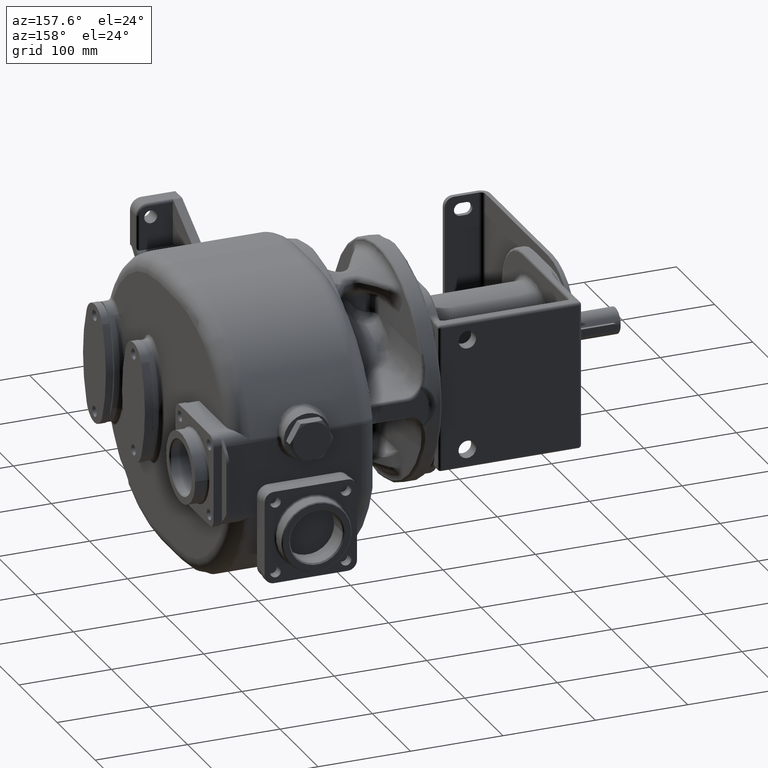
[diagram: clean part render]
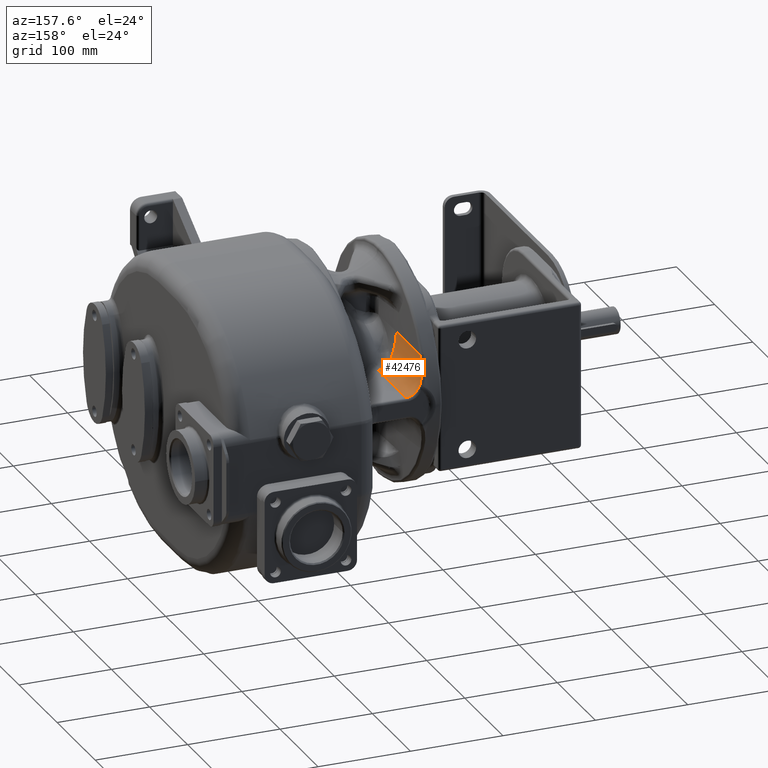
[diagram: same view with one face highlighted and labeled with its STEP entity id]
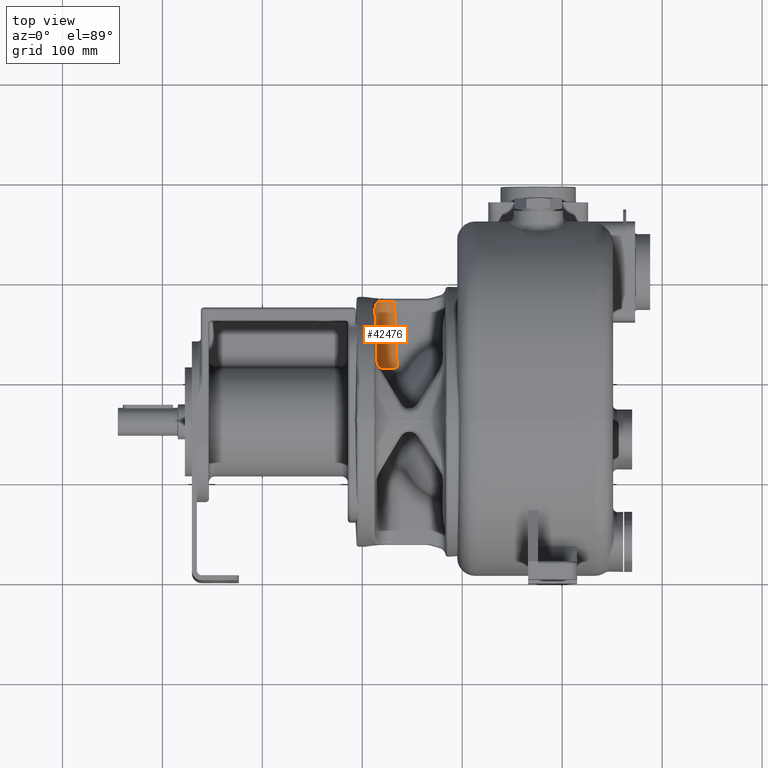
[diagram: same view with one face highlighted and labeled with its STEP entity id]
A machine part, auxiliary view. The second image highlights one B-rep face of the part: STEP entity #42476.
A second angle (top view) of the same face is appended — the face is thin or edge-on in the first view.
In plain terms, the highlighted face is a freeform B-spline surface patch.
Its self-contained STEP definition (entity closure, byte-faithful):
#7581=CARTESIAN_POINT('',(-1.815004487016E2,2.802087586596E2,1.938806853453E1));
#7582=CARTESIAN_POINT('',(-1.813758234579E2,2.802093198574E2,1.917876427243E1));
#7583=CARTESIAN_POINT('',(-1.811254118150E2,2.802103880616E2,1.877238443377E1));
#7584=CARTESIAN_POINT('',(-1.807475351435E2,2.802118111789E2,1.819885994979E1));
#7585=CARTESIAN_POINT('',(-1.803677355879E2,2.802130445616E2,1.765936036321E1));
#7586=CARTESIAN_POINT('',(-1.799863597802E2,2.802140788385E2,1.715207963159E1));
#7587=CARTESIAN_POINT('',(-1.796035142827E2,2.802149045889E2,1.667506037468E1));
#7588=CARTESIAN_POINT('',(-1.792191368028E2,2.802155154500E2,1.622635929515E1));
#7589=CARTESIAN_POINT('',(-1.788330071277E2,2.802159045927E2,1.580408150634E1));
#7590=CARTESIAN_POINT('',(-1.784446620134E2,2.802160651490E2,1.540632206977E1));
#7591=CARTESIAN_POINT('',(-1.780536567282E2,2.802159927249E2,1.503146310839E1));
#7592=CARTESIAN_POINT('',(-1.776599264368E2,2.802156801403E2,1.467843183220E1));
#7593=CARTESIAN_POINT('',(-1.772632157029E2,2.802151261648E2,1.434609879092E1));
#7594=CARTESIAN_POINT('',(-1.768631401999E2,2.802143249813E2,1.403337738278E1));
#7595=CARTESIAN_POINT('',(-1.764592960385E2,2.802132779954E2,1.373931474762E1));
#7596=CARTESIAN_POINT('',(-1.760513290655E2,2.802119814182E2,1.346312391480E1));
#7597=CARTESIAN_POINT('',(-1.756387715638E2,2.802104391675E2,1.320405761815E1));
#7598=CARTESIAN_POINT('',(-1.752210688441E2,2.802086501198E2,1.296144265774E1));
#7599=CARTESIAN_POINT('',(-1.747976493581E2,2.802066186774E2,1.273472211071E1));
#7600=CARTESIAN_POINT('',(-1.743679398186E2,2.802043488725E2,1.252345393090E1));
#7601=CARTESIAN_POINT('',(-1.739313088677E2,2.802018443103E2,1.232727795963E1));
#7602=CARTESIAN_POINT('',(-1.734871078628E2,2.801991147730E2,1.214593452123E1));
#7603=CARTESIAN_POINT('',(-1.730346288329E2,2.801961634087E2,1.197924586871E1));
#7604=CARTESIAN_POINT('',(-1.725731424577E2,2.801930041769E2,1.182713099186E1));
#7605=CARTESIAN_POINT('',(-1.721019165057E2,2.801896421261E2,1.168961093179E1));
#7606=CARTESIAN_POINT('',(-1.716203086904E2,2.801860946061E2,1.156681787548E1));
#7607=CARTESIAN_POINT('',(-1.711272588606E2,2.801823676018E2,1.145887474046E1));
#7608=CARTESIAN_POINT('',(-1.706215995599E2,2.801784756672E2,1.136602133703E1));
#7609=CARTESIAN_POINT('',(-1.701022431684E2,2.801744296439E2,1.128864627862E1));
#7610=CARTESIAN_POINT('',(-1.695681333230E2,2.801702431898E2,1.122726224460E1));
#7611=CARTESIAN_POINT('',(-1.690183172455E2,2.801659347281E2,1.118249948872E1));
#7612=CARTESIAN_POINT('',(-1.684519380225E2,2.801615178096E2,1.115508780255E1));
#7613=CARTESIAN_POINT('',(-1.680629920527E2,2.801585184324E2,1.114891607235E1));
#7614=CARTESIAN_POINT('',(-1.678655197267E2,2.801570078687E2,1.114899490412E1));
#7616=CARTESIAN_POINT('',(-1.700177710151E2,2.129948751001E2,1.550553421383E1));
#7617=CARTESIAN_POINT('',(-1.698700551071E2,2.130370000663E2,1.544979734173E1));
#7618=CARTESIAN_POINT('',(-1.695717845526E2,2.131219206863E2,1.534320619561E1));
#7619=CARTESIAN_POINT('',(-1.691160869185E2,2.132510866742E2,1.519824429434E1));
#7620=CARTESIAN_POINT('',(-1.686506325535E2,2.133822372859E2,1.506800685973E1));
#7621=CARTESIAN_POINT('',(-1.681743832491E2,2.135153654045E2,1.495262089919E1));
#7622=CARTESIAN_POINT('',(-1.676867773183E2,2.136528640517E2,1.485227052059E1));
#7623=CARTESIAN_POINT('',(-1.671865898962E2,2.137946739694E2,1.476725981711E1));
#7624=CARTESIAN_POINT('',(-1.666726796370E2,2.139407730196E2,1.469805456479E1));
#7625=CARTESIAN_POINT('',(-1.661442960130E2,2.140923185100E2,1.464520594418E1));
#7626=CARTESIAN_POINT('',(-1.656004580199E2,2.142498070475E2,1.460936599733E1));
#7627=CARTESIAN_POINT('',(-1.652269947263E2,2.143587793557E2,1.459733485928E1));
#7628=CARTESIAN_POINT('',(-1.650374075172E2,2.144142901760E2,1.459442474243E1));
#7630=CARTESIAN_POINT('',(-1.700177710151E2,2.129948751001E2,1.550553421383E1));
#7631=CARTESIAN_POINT('',(-1.701629985630E2,2.129920435323E2,1.555778128648E1));
#7632=CARTESIAN_POINT('',(-1.704541627311E2,2.129869515762E2,1.566807123645E1));
#7633=CARTESIAN_POINT('',(-1.708963395078E2,2.129817753573E2,1.585353992273E1));
#7634=CARTESIAN_POINT('',(-1.713308645302E2,2.129770973667E2,1.605436848925E1));
#7635=CARTESIAN_POINT('',(-1.717611802598E2,2.129734610968E2,1.627208280385E1));
#7636=CARTESIAN_POINT('',(-1.721862946671E2,2.129707385684E2,1.650654812044E1));
#7637=CARTESIAN_POINT('',(-1.726068016226E2,2.129690467686E2,1.675832663965E1));
#7638=CARTESIAN_POINT('',(-1.730229129854E2,2.129684719537E2,1.702790404894E1));
#7639=CARTESIAN_POINT('',(-1.734352917186E2,2.129690199764E2,1.731615169184E1));
#7640=CARTESIAN_POINT('',(-1.738445082245E2,2.129706876600E2,1.762405776449E1));
#7641=CARTESIAN_POINT('',(-1.742509903384E2,2.129735304754E2,1.795266128447E1));
#7642=CARTESIAN_POINT('',(-1.746550039026E2,2.129776197022E2,1.830301193419E1));
#7643=CARTESIAN_POINT('',(-1.750569999093E2,2.129830026243E2,1.867648170347E1));
#7644=CARTESIAN_POINT('',(-1.754572893246E2,2.129897253595E2,1.907451032448E1));
#7645=CARTESIAN_POINT('',(-1.758562720670E2,2.129978658688E2,1.949883315527E1));
#7646=CARTESIAN_POINT('',(-1.762541630850E2,2.130075140276E2,1.995122703772E1));
#7647=CARTESIAN_POINT('',(-1.766510614184E2,2.130187660424E2,2.043356481460E1));
#7648=CARTESIAN_POINT('',(-1.770468459050E2,2.130317220964E2,2.094764704583E1));
#7649=CARTESIAN_POINT('',(-1.774418790186E2,2.130465102034E2,2.149616010568E1));
#7650=CARTESIAN_POINT('',(-1.778363426046E2,2.130632727668E2,2.208195094319E1));
#7651=CARTESIAN_POINT('',(-1.782301269839E2,2.130821601060E2,2.270782098983E1));
#7652=CARTESIAN_POINT('',(-1.786228141500E2,2.131033231593E2,2.337637958055E1));
#7653=CARTESIAN_POINT('',(-1.790145642836E2,2.131269654624E2,2.409161825879E1));
#7654=CARTESIAN_POINT('',(-1.794052748845E2,2.131533094080E2,2.485770977711E1));
#7655=CARTESIAN_POINT('',(-1.797944520058E2,2.131825823237E2,2.567865662256E1));
#7656=CARTESIAN_POINT('',(-1.801815201423E2,2.132150331404E2,2.655881821860E1));
#7657=CARTESIAN_POINT('',(-1.805664070214E2,2.132509966715E2,2.750453493395E1));
#7658=CARTESIAN_POINT('',(-1.809484833827E2,2.132908176814E2,2.852196127733E1));
#7659=CARTESIAN_POINT('',(-1.813267084790E2,2.133348511690E2,2.961716998658E1));
#7660=CARTESIAN_POINT('',(-1.816999231305E2,2.133834924958E2,3.079692363609E1));
#7661=CARTESIAN_POINT('',(-1.820667421238E2,2.134371778761E2,3.206861171968E1));
#7662=CARTESIAN_POINT('',(-1.824250803499E2,2.134962926187E2,3.343818056107E1));
#7663=CARTESIAN_POINT('',(-1.827742910555E2,2.135615515671E2,3.491883410014E1));
#7664=CARTESIAN_POINT('',(-1.831135521220E2,2.136338598776E2,3.652728942497E1));
#7665=CARTESIAN_POINT('',(-1.834412559612E2,2.137142960650E2,3.828304188365E1));
#7666=CARTESIAN_POINT('',(-1.837507023555E2,2.138028090601E2,4.018059967769E1));
#7667=CARTESIAN_POINT('',(-1.840354153226E2,2.138989111168E2,4.220628994240E1));
#7668=CARTESIAN_POINT('',(-1.842908367446E2,2.140021590845E2,4.434858375828E1));
#7669=CARTESIAN_POINT('',(-1.845137055814E2,2.141120735645E2,4.659613500073E1));
#7670=CARTESIAN_POINT('',(-1.847018833944E2,2.142281320616E2,4.893753205899E1));
#7671=CARTESIAN_POINT('',(-1.848542262703E2,2.143498613123E2,5.136297323241E1));
#7672=CARTESIAN_POINT('',(-1.849315380751E2,2.144343240900E2,5.302674174166E1));
#7673=CARTESIAN_POINT('',(-1.849642547482E2,2.144774138560E2,5.387100050187E1));
#7675=CARTESIAN_POINT('',(-1.873510050882E2,2.709093905532E2,5.120001611979E1));
#7676=CARTESIAN_POINT('',(-1.873512741124E2,2.711878345337E2,5.060910059218E1));
#7677=CARTESIAN_POINT('',(-1.873454021258E2,2.717332979972E2,4.942704754474E1));
#7678=CARTESIAN_POINT('',(-1.873159171018E2,2.725186226095E2,4.765161955472E1));
#7679=CARTESIAN_POINT('',(-1.872645029994E2,2.732673310875E2,4.588420976282E1));
#7680=CARTESIAN_POINT('',(-1.871901638697E2,2.739775813409E2,4.413226084848E1));
#7681=CARTESIAN_POINT('',(-1.870922272706E2,2.746475428817E2,4.240437307677E1));
#7682=CARTESIAN_POINT('',(-1.869704051036E2,2.752759376740E2,4.070903393559E1));
#7683=CARTESIAN_POINT('',(-1.868248875737E2,2.758617899644E2,3.905514829749E1));
#7684=CARTESIAN_POINT('',(-1.866563959347E2,2.764046671839E2,3.745138019872E1));
#7685=CARTESIAN_POINT('',(-1.864659336733E2,2.769052824983E2,3.590391358706E1));
#7686=CARTESIAN_POINT('',(-1.862550283468E2,2.773644355658E2,3.441922598460E1));
#7687=CARTESIAN_POINT('',(-1.860259109872E2,2.777830264999E2,3.300417836027E1));
#7688=CARTESIAN_POINT('',(-1.857800948945E2,2.781641406416E2,3.165824530700E1));
#7689=CARTESIAN_POINT('',(-1.855190251417E2,2.785108226878E2,3.038018007531E1));
#7690=CARTESIAN_POINT('',(-1.852442355045E2,2.788258663601E2,2.916877420457E1));
#7691=CARTESIAN_POINT('',(-1.849571890887E2,2.791119666316E2,2.802224092175E1));
#7692=CARTESIAN_POINT('',(-1.846592511709E2,2.793717132875E2,2.693835315760E1));
#7693=CARTESIAN_POINT('',(-1.843517297047E2,2.796074941411E2,2.591475411729E1));
#7694=CARTESIAN_POINT('',(-1.840358511390E2,2.798215097835E2,2.494894899633E1));
#7695=CARTESIAN_POINT('',(-1.837128411340E2,2.800157680824E2,2.403859818451E1));
#7696=CARTESIAN_POINT('',(-1.833838918505E2,2.801920862824E2,2.318135660583E1));
#7697=CARTESIAN_POINT('',(-1.831610977908E2,2.802988854992E2,2.264306450900E1));
#7698=CARTESIAN_POINT('',(-1.830491337892E2,2.803497824558E2,2.238214819686E1));
#7700=CARTESIAN_POINT('',(-1.830491337892E2,2.803497824558E2,2.238214819686E1));
#7701=CARTESIAN_POINT('',(-1.830183969528E2,2.803637530303E2,2.231052144473E1));
#7702=CARTESIAN_POINT('',(-1.829560407983E2,2.803885169281E2,2.216717046308E1));
#7703=CARTESIAN_POINT('',(-1.828596500337E2,2.804160907192E2,2.195157413090E1));
#7704=CARTESIAN_POINT('',(-1.827607636230E2,2.804338504196E2,2.173639931593E1));
#7705=CARTESIAN_POINT('',(-1.826596208504E2,2.804417085613E2,2.152228667754E1));
#7706=CARTESIAN_POINT('',(-1.825565173232E2,2.804396648683E2,2.130993655390E1));
#7707=CARTESIAN_POINT('',(-1.824517573127E2,2.804277794327E2,2.110000490959E1));
#7708=CARTESIAN_POINT('',(-1.823456812720E2,2.804062220739E2,2.089315070097E1));
#7709=CARTESIAN_POINT('',(-1.822385968743E2,2.803751974760E2,2.068991451335E1));
#7710=CARTESIAN_POINT('',(-1.821668623597E2,2.803484552596E2,2.055737653428E1));
#7711=CARTESIAN_POINT('',(-1.821308874422E2,2.803335983777E2,2.049178284915E1));
#7713=CARTESIAN_POINT('',(-1.821308874422E2,2.803335983777E2,2.049178284915E1));
#7714=CARTESIAN_POINT('',(-1.820897010361E2,2.803165885997E2,2.041668722260E1));
#7715=CARTESIAN_POINT('',(-1.820069384022E2,2.802861182625E2,2.026697331283E1));
#7716=CARTESIAN_POINT('',(-1.818814780663E2,2.802508633381E2,2.004365823209E1));
#7717=CARTESIAN_POINT('',(-1.817550796272E2,2.802260320841E2,1.982233735916E1));
#7718=CARTESIAN_POINT('',(-1.816279825908E2,2.802115002010E2,1.960345794874E1));
#7719=CARTESIAN_POINT('',(-1.815430118173E2,2.802085670338E2,1.945955226861E1));
#7720=CARTESIAN_POINT('',(-1.815004487016E2,2.802087586596E2,1.938806853453E1));
#7781=CARTESIAN_POINT('',(-1.650374075165E2,2.144142901764E2,1.459442474241E1));
#7788=CARTESIAN_POINT('',(-1.650374075165E2,2.144142901764E2,1.459442474241E1));
#7789=CARTESIAN_POINT('',(-1.650583796709E2,2.150000826745E2,1.456372465846E1));
#7790=CARTESIAN_POINT('',(-1.651075881689E2,2.163626056695E2,1.449231785407E1));
#7791=CARTESIAN_POINT('',(-1.651869371341E2,2.185180199956E2,1.437935737580E1));
#7792=CARTESIAN_POINT('',(-1.652763616977E2,2.208982023166E2,1.425461730607E1));
#7793=CARTESIAN_POINT('',(-1.653695328857E2,2.233310685888E2,1.412711618745E1));
#7794=CARTESIAN_POINT('',(-1.654665922112E2,2.258201508343E2,1.399666891451E1));
#7795=CARTESIAN_POINT('',(-1.655676928198E2,2.283691498840E2,1.386308153492E1));
#7796=CARTESIAN_POINT('',(-1.656730000687E2,2.309819496770E2,1.372615050006E1));
#7797=CARTESIAN_POINT('',(-1.657826921786E2,2.336626328277E2,1.358566184917E1));
#7798=CARTESIAN_POINT('',(-1.658969609699E2,2.364154976563E2,1.344139031684E1));
#7799=CARTESIAN_POINT('',(-1.660160126917E2,2.392450768404E2,1.329309835550E1));
#7800=CARTESIAN_POINT('',(-1.661400689445E2,2.421561576775E2,1.314053507351E1));
#7801=CARTESIAN_POINT('',(-1.662693676977E2,2.451538039472E2,1.298343508944E1));
#7802=CARTESIAN_POINT('',(-1.664041644145E2,2.482433796581E2,1.282151728750E1));
#7803=CARTESIAN_POINT('',(-1.665447332949E2,2.514305748776E2,1.265448346391E1));
#7804=CARTESIAN_POINT('',(-1.666913686763E2,2.547214345159E2,1.248201681833E1));
#7805=CARTESIAN_POINT('',(-1.668443865911E2,2.581223899850E2,1.230378029476E1));
#7806=CARTESIAN_POINT('',(-1.670041265763E2,2.616402957385E2,1.211941466649E1));
#7807=CARTESIAN_POINT('',(-1.671709534181E2,2.652824636614E2,1.192853673387E1));
#7808=CARTESIAN_POINT('',(-1.673452596971E2,2.690567143421E2,1.173073663724E1));
#7809=CARTESIAN_POINT('',(-1.675274675591E2,2.729714105480E2,1.152557610252E1));
#7810=CARTESIAN_POINT('',(-1.677016952343E2,2.766871134714E2,1.133084436383E1));
#7811=CARTESIAN_POINT('',(-1.678154732200E2,2.790988368801E2,1.120445129573E1));
#7812=CARTESIAN_POINT('',(-1.678655197267E2,2.801570078687E2,1.114899490412E1));
#9303=CARTESIAN_POINT('',(-1.849642544333E2,2.144774130516E2,5.387099244443E1));
#9304=CARTESIAN_POINT('',(-1.849731995182E2,2.147287982112E2,5.385952116343E1));
#9305=CARTESIAN_POINT('',(-1.850091922251E2,2.157363138500E2,5.381358650457E1));
#9306=CARTESIAN_POINT('',(-1.850737189799E2,2.175155547059E2,5.373218005533E1));
#9307=CARTESIAN_POINT('',(-1.851595279728E2,2.198318442614E2,5.362599031108E1));
#9308=CARTESIAN_POINT('',(-1.852489523543E2,2.221980530439E2,5.351716574299E1));
#9309=CARTESIAN_POINT('',(-1.853421235928E2,2.246175385688E2,5.340554164032E1));
#9310=CARTESIAN_POINT('',(-1.854391829042E2,2.270938118899E2,5.329091124794E1));
#9311=CARTESIAN_POINT('',(-1.855402835167E2,2.296305540184E2,5.317306991871E1));
#9312=CARTESIAN_POINT('',(-1.856455907645E2,2.322316294117E2,5.305180180862E1));
#9313=CARTESIAN_POINT('',(-1.857552828747E2,2.349011017936E2,5.292688241672E1));
#9314=CARTESIAN_POINT('',(-1.858695516659E2,2.376432511297E2,5.279807664611E1));
#9315=CARTESIAN_POINT('',(-1.859886033877E2,2.404625923014E2,5.266513801338E1));
#9316=CARTESIAN_POINT('',(-1.861126596405E2,2.433638953618E2,5.252780743970E1));
#9317=CARTESIAN_POINT('',(-1.862419583936E2,2.463522073941E2,5.238581205839E1));
#9318=CARTESIAN_POINT('',(-1.863767551104E2,2.494328762498E2,5.223886390313E1));
#9319=CARTESIAN_POINT('',(-1.865173239908E2,2.526115763688E2,5.208665849922E1));
#9320=CARTESIAN_POINT('',(-1.866639593721E2,2.558943375481E2,5.192887330747E1));
#9321=CARTESIAN_POINT('',(-1.868169772873E2,2.592875765876E2,5.176516601630E1));
#9322=CARTESIAN_POINT('',(-1.869767172707E2,2.627981338026E2,5.159517261582E1));
#9323=CARTESIAN_POINT('',(-1.871435441195E2,2.664333074357E2,5.141850546012E1));
#9324=CARTESIAN_POINT('',(-1.872692725466E2,2.691509041017E2,5.128596190401E1));
#9325=CARTESIAN_POINT('',(-1.873392959690E2,2.706576271124E2,5.121232457723E1));
#9326=CARTESIAN_POINT('',(-1.873510050882E2,2.709093905532E2,5.120001611979E1));
#9448=CARTESIAN_POINT('',(-1.849642544333E2,2.144774130516E2,5.387099244443E1));
#9518=CARTESIAN_POINT('',(-1.700026951535E2,2.129926642686E2,1.550029634444E1));
#29497=VERTEX_POINT('',#7781);
#29882=CARTESIAN_POINT('',(-1.678655197267E2,2.801570078687E2,
1.114899490412E1));
#29884=VERTEX_POINT('',#29882);
#29909=CARTESIAN_POINT('',(-1.873510050959E2,2.709093905852E2,
5.120001612751E1));
#29910=VERTEX_POINT('',#29909);
#30136=VERTEX_POINT('',#9448);
#30151=VERTEX_POINT('',#9518);
#30173=VERTEX_POINT('',#7581);
#30174=VERTEX_POINT('',#7713);
#30175=VERTEX_POINT('',#7700);
#42200=CARTESIAN_POINT('',(-1.645326928512E2,1.989445729027E2,
1.540515827086E1));
#42201=CARTESIAN_POINT('',(-1.827978225217E2,1.984162113954E2,
1.543284852412E1));
#42202=CARTESIAN_POINT('',(-1.845052835463E2,2.004146047738E2,
5.450951541458E1));
#42203=CARTESIAN_POINT('',(-1.645524381880E2,1.996252794970E2,
1.536948394991E1));
#42204=CARTESIAN_POINT('',(-1.828267321601E2,1.990900851904E2,
1.539753229500E1));
#42205=CARTESIAN_POINT('',(-1.845250288831E2,2.010883793339E2,
5.447898090565E1));
#42206=CARTESIAN_POINT('',(-1.645929296132E2,2.009956682321E2,
1.529766491955E1));
#42207=CARTESIAN_POINT('',(-1.828857168751E2,2.004470230648E2,
1.532641819438E1));
#42208=CARTESIAN_POINT('',(-1.845655203083E2,2.024451701852E2,
5.441751068365E1));
#42209=CARTESIAN_POINT('',(-1.646562185257E2,2.030650565155E2,
1.518921287514E1));
#42210=CARTESIAN_POINT('',(-1.829769710797E2,2.024970009905E2,
1.521898340371E1));
#42211=CARTESIAN_POINT('',(-1.846288092208E2,2.044950738121E2,
5.432464326387E1));
#42212=CARTESIAN_POINT('',(-1.647224942243E2,2.051636751653E2,
1.507922893214E1));
#42213=CARTESIAN_POINT('',(-1.830715489136E2,2.045768356449E2,
1.510998388820E1));
#42214=CARTESIAN_POINT('',(-1.846950849194E2,2.065749717988E2,
5.423037085119E1));
#42215=CARTESIAN_POINT('',(-1.647918157590E2,2.072939896011E2,
1.496758388339E1));
#42216=CARTESIAN_POINT('',(-1.831694524699E2,2.066889792387E2,
1.499929113292E1));
#42217=CARTESIAN_POINT('',(-1.847644064541E2,2.086873091688E2,
5.413453535999E1));
#42218=CARTESIAN_POINT('',(-1.648642551172E2,2.094586888239E2,
1.485413680430E1));
#42219=CARTESIAN_POINT('',(-1.832707020458E2,2.088361060765E2,
1.488676498351E1));
#42220=CARTESIAN_POINT('',(-1.848368458123E2,2.108347530855E2,
5.403696985618E1));
#42221=CARTESIAN_POINT('',(-1.649398922202E2,2.116605179603E2,
1.473874382890E1));
#42222=CARTESIAN_POINT('',(-1.833753295833E2,2.110209465440E2,
1.477226234652E1));
#42223=CARTESIAN_POINT('',(-1.849124829153E2,2.130200268950E2,
5.393750645167E1));
#42224=CARTESIAN_POINT('',(-1.650188169777E2,2.139023447114E2,
1.462125466734E1));
#42225=CARTESIAN_POINT('',(-1.834833809486E2,2.132463532856E2,
1.465563372120E1));
#42226=CARTESIAN_POINT('',(-1.849914076728E2,2.152459763431E2,
5.383597294324E1));
#42227=CARTESIAN_POINT('',(-1.651011287990E2,2.161871450673E2,
1.450151335458E1));
#42228=CARTESIAN_POINT('',(-1.835949149521E2,2.155152872016E2,
1.453672393332E1));
#42229=CARTESIAN_POINT('',(-1.850737194941E2,2.175155555987E2,
5.373219328663E1));
#42230=CARTESIAN_POINT('',(-1.651869371342E2,2.185180199956E2,
1.437935737581E1));
#42231=CARTESIAN_POINT('',(-1.837100037040E2,2.178308341844E2,
1.441537125813E1));
#42232=CARTESIAN_POINT('',(-1.851595278293E2,2.198318440127E2,
5.362598661704E1));
#42233=CARTESIAN_POINT('',(-1.652763616976E2,2.208982023166E2,
1.425461730607E1));
#42234=CARTESIAN_POINT('',(-1.838287325506E2,2.201962120967E2,
1.429140705458E1));
#42235=CARTESIAN_POINT('',(-1.852489523927E2,2.221980531109E2,
5.351716672971E1));
#42236=CARTESIAN_POINT('',(-1.653695328857E2,2.233310685888E2,
1.412711618745E1));
#42237=CARTESIAN_POINT('',(-1.839512002639E2,2.226147827145E2,
1.416465513945E1));
#42238=CARTESIAN_POINT('',(-1.853421235808E2,2.246175385483E2,
5.340554133071E1));
#42239=CARTESIAN_POINT('',(-1.654665922112E2,2.258201508344E2,
1.399666891451E1));
#42240=CARTESIAN_POINT('',(-1.840775192478E2,2.250900635055E2,
1.403493117010E1));
#42241=CARTESIAN_POINT('',(-1.854391829063E2,2.270938118937E2,
5.329091129784E1));
#42242=CARTESIAN_POINT('',(-1.655676928198E2,2.283691498840E2,
1.386308153492E1));
#42243=CARTESIAN_POINT('',(-1.842078158495E2,2.276257410108E2,
1.390204194307E1));
#42244=CARTESIAN_POINT('',(-1.855402835149E2,2.296305540155E2,
5.317306986874E1));
#42245=CARTESIAN_POINT('',(-1.656730000687E2,2.309819496770E2,
1.372615050006E1));
#42246=CARTESIAN_POINT('',(-1.843422307441E2,2.302256851738E2,
1.376578464322E1));
#42247=CARTESIAN_POINT('',(-1.856455907638E2,2.322316294107E2,
5.305180178641E1));
#42248=CARTESIAN_POINT('',(-1.657826921786E2,2.336626328277E2,
1.358566184917E1));
#42249=CARTESIAN_POINT('',(-1.844809194084E2,2.328939649281E2,
1.362594602680E1));
#42250=CARTESIAN_POINT('',(-1.857552828737E2,2.349011017920E2,
5.292688238677E1));
#42251=CARTESIAN_POINT('',(-1.658969609699E2,2.364154976563E2,
1.344139031684E1));
#42252=CARTESIAN_POINT('',(-1.846240526939E2,2.356348652403E2,
1.348230152820E1));
#42253=CARTESIAN_POINT('',(-1.858695516650E2,2.376432511283E2,
5.279807661830E1));
#42254=CARTESIAN_POINT('',(-1.660160126917E2,2.392450768404E2,
1.329309835550E1));
#42255=CARTESIAN_POINT('',(-1.847718175073E2,2.384529057706E2,
1.333461428208E1));
#42256=CARTESIAN_POINT('',(-1.859886033868E2,2.404625923E2,5.266513798497E1));
#42257=CARTESIAN_POINT('',(-1.661400689445E2,2.421561576775E2,
1.314053507351E1));
#42258=CARTESIAN_POINT('',(-1.849244175977E2,2.413528611379E2,
1.318263406126E1));
#42259=CARTESIAN_POINT('',(-1.861126596396E2,2.433638953604E2,
5.252780741144E1));
#42260=CARTESIAN_POINT('',(-1.662693676977E2,2.451538039472E2,
1.298343508944E1));
#42261=CARTESIAN_POINT('',(-1.850820744475E2,2.443397827833E2,
1.302609613093E1));
#42262=CARTESIAN_POINT('',(-1.862419583928E2,2.463522073927E2,
5.238581203008E1));
#42263=CARTESIAN_POINT('',(-1.664041644145E2,2.482433796581E2,
1.282151728750E1));
#42264=CARTESIAN_POINT('',(-1.852450282815E2,2.474190227145E2,
1.286472000425E1));
#42265=CARTESIAN_POINT('',(-1.863767551096E2,2.494328762484E2,
5.223886387479E1));
#42266=CARTESIAN_POINT('',(-1.665447332949E2,2.514305748776E2,
1.265448346391E1));
#42267=CARTESIAN_POINT('',(-1.854135392037E2,2.505962593327E2,
1.269820808883E1));
#42268=CARTESIAN_POINT('',(-1.865173239900E2,2.526115763673E2,
5.208665847100E1));
#42269=CARTESIAN_POINT('',(-1.666913686763E2,2.547214345159E2,
1.248201681833E1));
#42270=CARTESIAN_POINT('',(-1.855878885058E2,2.538775262082E2,
1.252624417866E1));
#42271=CARTESIAN_POINT('',(-1.866639593714E2,2.558943375468E2,
5.192887327869E1));
#42272=CARTESIAN_POINT('',(-1.668443865911E2,2.581223899850E2,
1.230378029476E1));
#42273=CARTESIAN_POINT('',(-1.857683801429E2,2.572692437308E2,
1.234849179534E1));
#42274=CARTESIAN_POINT('',(-1.868169772862E2,2.592875765855E2,
5.176516598968E1));
#42275=CARTESIAN_POINT('',(-1.670041265763E2,2.616402957385E2,
1.211941466649E1));
#42276=CARTESIAN_POINT('',(-1.859553424818E2,2.607782556364E2,
1.216459227389E1));
#42277=CARTESIAN_POINT('',(-1.869767172714E2,2.627981338036E2,
5.159517258066E1));
#42278=CARTESIAN_POINT('',(-1.671709534181E2,2.652824636614E2,
1.192853673387E1));
#42279=CARTESIAN_POINT('',(-1.861491299459E2,2.644118633965E2,
1.197416296040E1));
#42280=CARTESIAN_POINT('',(-1.871435441132E2,2.664333074245E2,
5.141850545852E1));
#42281=CARTESIAN_POINT('',(-1.673452596971E2,2.690567143421E2,
1.173073663724E1));
#42282=CARTESIAN_POINT('',(-1.863501255684E2,2.681778774588E2,
1.177679452664E1));
#42283=CARTESIAN_POINT('',(-1.873178503922E2,2.702009048132E2,
5.123475077734E1));
#42284=CARTESIAN_POINT('',(-1.675274675591E2,2.729714105480E2,
1.152557610252E1));
#42285=CARTESIAN_POINT('',(-1.865587426066E2,2.720846507451E2,
1.157204921455E1));
#42286=CARTESIAN_POINT('',(-1.875000582542E2,2.741092759612E2,
5.104346660220E1));
#42287=CARTESIAN_POINT('',(-1.677180318849E2,2.770355204645E2,
1.131258512703E1));
#42288=CARTESIAN_POINT('',(-1.867754277472E2,2.761411418524E2,
1.135945752393E1));
#42289=CARTESIAN_POINT('',(-1.876906225800E2,2.781673766873E2,
5.084417961354E1));
#42290=CARTESIAN_POINT('',(-1.679174396105E2,2.812585982331E2,
1.109126299944E1));
#42291=CARTESIAN_POINT('',(-1.870006599072E2,2.803568957175E2,
1.113851922586E1));
#42292=CARTESIAN_POINT('',(-1.878900303056E2,2.823847492662E2,
5.063638585517E1));
#42293=CARTESIAN_POINT('',(-1.681262234407E2,2.856510696438E2,
1.086106332724E1));
#42294=CARTESIAN_POINT('',(-1.872349653123E2,2.847423288932E2,
1.090868841192E1));
#42295=CARTESIAN_POINT('',(-1.880988141357E2,2.867718077866E2,
5.041953647761E1));
#42296=CARTESIAN_POINT('',(-1.683447702177E2,2.902202146409E2,
1.062160458472E1));
#42297=CARTESIAN_POINT('',(-1.874787030369E2,2.893047181987E2,
1.066958372020E1));
#42298=CARTESIAN_POINT('',(-1.883173609128E2,2.913358253277E2,
5.019323635743E1));
#42299=CARTESIAN_POINT('',(-1.685729301599E2,2.949621684388E2,
1.037308931671E1));
#42300=CARTESIAN_POINT('',(-1.877316382770E2,2.940402103097E2,
1.042140709485E1));
#42301=CARTESIAN_POINT('',(-1.885455208550E2,2.960729410812E2,
4.995764462746E1));
#42302=CARTESIAN_POINT('',(-1.688100915633E2,2.998638138224E2,
1.011620496733E1));
#42303=CARTESIAN_POINT('',(-1.879930440348E2,2.989357050010E2,
1.016484508959E1));
#42304=CARTESIAN_POINT('',(-1.887826822584E2,3.009700451273E2,
4.971338978073E1));
#42305=CARTESIAN_POINT('',(-1.690556834251E2,3.049133079380E2,
9.851572194222E0));
#42306=CARTESIAN_POINT('',(-1.882622637602E2,3.039793664221E2,
9.900517995050E0));
#42307=CARTESIAN_POINT('',(-1.890282741202E2,3.060152936815E2,
4.946104928017E1));
#42308=CARTESIAN_POINT('',(-1.693095919832E2,3.101084509524E2,
9.579306285780E0));
#42309=CARTESIAN_POINT('',(-1.885391578011E2,3.091689861930E2,
9.628541547535E0));
#42310=CARTESIAN_POINT('',(-1.892821826783E2,3.112064744253E2,
4.920072635660E1));
#42311=CARTESIAN_POINT('',(-1.695720535823E2,3.154542425417E2,
9.299145220076E0));
#42312=CARTESIAN_POINT('',(-1.888239724618E2,3.145095474124E2,
9.348654593905E0));
#42313=CARTESIAN_POINT('',(-1.895446442774E2,3.165485691013E2,
4.893216551640E1));
#42314=CARTESIAN_POINT('',(-1.698433334551E2,3.209562337457E2,
9.010798079441E0));
#42315=CARTESIAN_POINT('',(-1.891169852021E2,3.200065850216E2,
9.060567060170E0));
#42316=CARTESIAN_POINT('',(-1.898159241502E2,3.220471116384E2,
4.865508346050E1));
#42317=CARTESIAN_POINT('',(-1.701237011818E2,3.266200265319E2,
8.713971277197E0));
#42318=CARTESIAN_POINT('',(-1.894184777672E2,3.256656858604E2,
8.763986152468E0));
#42319=CARTESIAN_POINT('',(-1.900962918769E2,3.277076880330E2,
4.836919410536E1));
#42320=CARTESIAN_POINT('',(-1.704134373179E2,3.324514101569E2,
8.408361411263E0));
#42321=CARTESIAN_POINT('',(-1.897287432731E2,3.314926248579E2,
8.458609219592E0));
#42322=CARTESIAN_POINT('',(-1.903860280129E2,3.335360725568E2,
4.807420167811E1));
#42323=CARTESIAN_POINT('',(-1.707128318205E2,3.384563305559E2,
8.093656868381E0));
#42324=CARTESIAN_POINT('',(-1.900480844152E2,3.374933344123E2,
8.144125357721E0));
#42325=CARTESIAN_POINT('',(-1.906854225156E2,3.395381971083E2,
4.776980221232E1));
#42326=CARTESIAN_POINT('',(-1.710221847593E2,3.446409058849E2,
7.769537009579E0));
#42327=CARTESIAN_POINT('',(-1.903768141494E2,3.436739198848E2,
7.820214598438E0));
#42328=CARTESIAN_POINT('',(-1.909947754544E2,3.457201666915E2,
4.745568272238E1));
#42329=CARTESIAN_POINT('',(-1.713418064826E2,3.510114309367E2,
7.435671938744E0));
#42330=CARTESIAN_POINT('',(-1.907152557964E2,3.500406639777E2,
7.486547679266E0));
#42331=CARTESIAN_POINT('',(-1.913143971776E2,3.520882637788E2,
4.713152094325E1));
#42332=CARTESIAN_POINT('',(-1.716720179567E2,3.575743848832E2,
7.091722096874E0));
#42333=CARTESIAN_POINT('',(-1.910637433342E2,3.566000344387E2,
7.142785639911E0));
#42334=CARTESIAN_POINT('',(-1.916446086518E2,3.586489560010E2,
4.679698490477E1));
#42335=CARTESIAN_POINT('',(-1.720131510691E2,3.643364381889E2,
6.737337899730E0));
#42336=CARTESIAN_POINT('',(-1.914226216582E2,3.633586909392E2,
6.788579461782E0));
#42337=CARTESIAN_POINT('',(-1.919857417642E2,3.654089030133E2,
4.645173255054E1));
#42338=CARTESIAN_POINT('',(-1.723655489443E2,3.713044596693E2,
6.372159367944E0));
#42339=CARTESIAN_POINT('',(-1.917922468596E2,3.703234920986E2,
6.423569699871E0));
#42340=CARTESIAN_POINT('',(-1.923381396394E2,3.723749635073E2,
4.609541135188E1));
#42341=CARTESIAN_POINT('',(-1.727295662698E2,3.784855236646E2,
5.995815751057E0));
#42342=CARTESIAN_POINT('',(-1.921729865181E2,3.775015026258E2,
6.047386108471E0));
#42343=CARTESIAN_POINT('',(-1.927021569649E2,3.795542023429E2,
4.572765791803E1));
#42344=CARTESIAN_POINT('',(-1.731055696375E2,3.858869174202E2,
5.607925140731E0));
#42345=CARTESIAN_POINT('',(-1.925652200147E2,3.849000006689E2,
5.659647256001E0));
#42346=CARTESIAN_POINT('',(-1.930781603326E2,3.869538978875E2,
4.534809759775E1));
#42347=CARTESIAN_POINT('',(-1.734939379077E2,3.935161488484E2,
5.208094063941E0));
#42348=CARTESIAN_POINT('',(-1.929693388712E2,3.925264855486E2,
5.259960119724E0));
#42349=CARTESIAN_POINT('',(-1.934665286028E2,3.945815497417E2,
4.495634406277E1));
#42350=CARTESIAN_POINT('',(-1.738950625931E2,4.013809546042E2,
4.795917059787E0));
#42351=CARTESIAN_POINT('',(-1.933857471139E2,4.003886858050E2,
4.847919664006E0));
#42352=CARTESIAN_POINT('',(-1.938676532882E2,4.024448867776E2,
4.455199887678E1));
#42353=CARTESIAN_POINT('',(-1.743093482485E2,4.094893082050E2,
4.370976253928E0));
#42354=CARTESIAN_POINT('',(-1.938148616442E2,4.084945672922E2,
4.423108416129E0));
#42355=CARTESIAN_POINT('',(-1.942819389436E2,4.105518752269E2,
4.413465106303E1));
#42356=CARTESIAN_POINT('',(-1.747372128508E2,4.178494279092E2,
3.932840945689E0));
#42357=CARTESIAN_POINT('',(-1.942571126032E2,4.168523410318E2,
3.985096054685E0));
#42358=CARTESIAN_POINT('',(-1.947098035458E2,4.189107265276E2,
4.370387668558E1));
#42359=CARTESIAN_POINT('',(-1.751790881936E2,4.264697848206E2,
3.481067183339E0));
#42360=CARTESIAN_POINT('',(-1.947129437522E2,4.254704712937E2,
3.533438986091E0));
#42361=CARTESIAN_POINT('',(-1.951516788886E2,4.275299053991E2,
4.325923842002E1));
#42362=CARTESIAN_POINT('',(-1.756354203155E2,4.353591116109E2,
3.015197306938E0));
#42363=CARTESIAN_POINT('',(-1.951828128905E2,4.343576842963E2,
3.067679888605E0));
#42364=CARTESIAN_POINT('',(-1.956080110106E2,4.364181385378E2,
4.280028509305E1));
#42365=CARTESIAN_POINT('',(-1.761066699615E2,4.445264118373E2,
2.534759460049E0));
#42366=CARTESIAN_POINT('',(-1.956671923084E2,4.435229775032E2,
2.587347225153E0));
#42367=CARTESIAN_POINT('',(-1.960792606566E2,4.455844239081E2,
4.232655119209E1));
#42368=CARTESIAN_POINT('',(-1.765933130394E2,4.539809691158E2,
2.039267108979E0));
#42369=CARTESIAN_POINT('',(-1.961665692367E2,4.529756287760E2,
2.091954763613E0));
#42370=CARTESIAN_POINT('',(-1.965659037345E2,4.550380398920E2,
4.183755638280E1));
#42371=CARTESIAN_POINT('',(-1.770958410696E2,4.637323561356E2,
1.528218570340E0));
#42372=CARTESIAN_POINT('',(-1.966814462897E2,4.627252053700E2,
1.581001105368E0));
#42373=CARTESIAN_POINT('',(-1.970684317647E2,4.647885542810E2,
4.133280503530E1));
#42374=CARTESIAN_POINT('',(-1.776147616492E2,4.737904439127E2,
1.001096526107E0));
#42375=CARTESIAN_POINT('',(-1.972123419251E2,4.727815731704E2,
1.053969201299E0));
#42376=CARTESIAN_POINT('',(-1.975873523443E2,4.748458335082E2,
4.081178573861E1));
#42377=CARTESIAN_POINT('',(-1.781505989814E2,4.841654122770E2,
4.573674740062E-1));
#42378=CARTESIAN_POINT('',(-1.977597909706E2,4.831549071614E2,
5.103258030660E-1));
#42379=CARTESIAN_POINT('',(-1.981231896765E2,4.852200531152E2,
4.027397075158E1));
#42380=CARTESIAN_POINT('',(-1.787038944504E2,4.948677612082E2,
-1.035188665892E-1));
#42381=CARTESIAN_POINT('',(-1.983243451984E2,4.938557027472E2,
-5.047913014681E-2));
#42382=CARTESIAN_POINT('',(-1.986764851455E2,4.959217090702E2,
3.971881540985E1));
#42383=CARTESIAN_POINT('',(-1.792752072087E2,5.059083223849E2,
-6.821301598990E-1));
#42384=CARTESIAN_POINT('',(-1.989065739114E2,5.048947872847E2,
-6.290130360757E-1));
#42385=CARTESIAN_POINT('',(-1.992477979038E2,5.069616292984E2,
3.914575752190E1));
#42386=CARTESIAN_POINT('',(-1.798651147092E2,5.172982696168E2,
-1.279052000475E0));
#42387=CARTESIAN_POINT('',(-1.995070644746E2,5.162833305022E2,
-1.225861295374E0));
#42388=CARTESIAN_POINT('',(-1.998377054043E2,5.183509840986E2,
3.855421682308E1));
#42389=CARTESIAN_POINT('',(-1.804742132134E2,5.290491288244E2,
-1.894888436216E0));
#42390=CARTESIAN_POINT('',(-2.001264228221E2,5.280328544656E2,
-1.841627753928E0));
#42391=CARTESIAN_POINT('',(-2.004468039085E2,5.301012961075E2,
3.794359445345E1));
#42392=CARTESIAN_POINT('',(-1.811031183453E2,5.411727888563E2,
-2.530262535269E0));
#42393=CARTESIAN_POINT('',(-2.007652740115E2,5.401552443829E2,
-2.476935289093E0));
#42394=CARTESIAN_POINT('',(-2.010757090404E2,5.422244511024E2,
3.731327239245E1));
#42395=CARTESIAN_POINT('',(-1.817524657673E2,5.536815146658E2,
-3.185817076605E0));
#42396=CARTESIAN_POINT('',(-2.014242629030E2,5.526627617686E2,
-3.132426499626E0));
#42397=CARTESIAN_POINT('',(-2.017250564624E2,5.547327111646E2,
3.666261277101E1));
#42398=CARTESIAN_POINT('',(-1.824229119186E2,5.665879616343E2,
-3.862215300660E0));
#42399=CARTESIAN_POINT('',(-2.021040549009E2,5.655680587560E2,
-3.808764455720E0));
#42400=CARTESIAN_POINT('',(-2.023955026137E2,5.676387289895E2,
3.599095712376E1));
#42401=CARTESIAN_POINT('',(-1.831151347082E2,5.799051890289E2,
-4.560141614616E0));
#42402=CARTESIAN_POINT('',(-2.028053366493E2,5.788841915431E2,
-4.506633403730E0));
#42403=CARTESIAN_POINT('',(-2.030877254033E2,5.809555613329E2,
3.529762568609E1));
#42404=CARTESIAN_POINT('',(-1.838298341199E2,5.936466717259E2,
-5.280302206823E0));
#42405=CARTESIAN_POINT('',(-2.035288166391E2,5.926246321071E2,
-5.226739380061E0));
#42406=CARTESIAN_POINT('',(-2.038024248150E2,5.946966807234E2,
3.458191678152E1));
#42407=CARTESIAN_POINT('',(-1.845677328220E2,6.078263120170E2,
-6.023425665513E0));
#42408=CARTESIAN_POINT('',(-2.042752258183E2,6.068032800006E2,
-5.969810829399E0));
#42409=CARTESIAN_POINT('',(-2.045403235171E2,6.088759872581E2,
3.384310620493E1));
#42410=CARTESIAN_POINT('',(-1.853295768681E2,6.224584531806E2,
-6.790263690053E0));
#42411=CARTESIAN_POINT('',(-2.050453182984E2,6.214344759141E2,
-6.736599315478E0));
#42412=CARTESIAN_POINT('',(-2.053021675632E2,6.235078221638E2,
3.308044651400E1));
#42413=CARTESIAN_POINT('',(-1.861161365020E2,6.375578949980E2,
-7.581591904115E0));
#42414=CARTESIAN_POINT('',(-2.058398721616E2,6.365330171832E2,
-7.527880333805E0));
#42415=CARTESIAN_POINT('',(-2.060887271971E2,6.386069833048E2,
3.229316621912E1));
#42416=CARTESIAN_POINT('',(-1.869282069839E2,6.531399097018E2,
-8.398210691497E0));
#42417=CARTESIAN_POINT('',(-2.066596902933E2,6.521141737294E2,
-8.344454147054E0));
#42418=CARTESIAN_POINT('',(-2.069007976790E2,6.541887411220E2,
3.148046895061E1));
#42419=CARTESIAN_POINT('',(-1.877666094103E2,6.692202577554E2,
-9.240946023085E0));
#42420=CARTESIAN_POINT('',(-2.075056012046E2,6.681937038317E2,
-9.187146611626E0));
#42421=CARTESIAN_POINT('',(-2.077392001054E2,6.702688544050E2,
3.064153263453E1));
#42422=CARTESIAN_POINT('',(-1.886321915571E2,6.858152040858E2,
-1.011065030758E1));
#42423=CARTESIAN_POINT('',(-2.083784598804E2,6.847878703520E2,
-1.005681002801E1));
#42424=CARTESIAN_POINT('',(-2.086047822522E2,6.868635865168E2,
2.977550864475E1));
#42425=CARTESIAN_POINT('',(-1.895258287628E2,7.029415350697E2,
-1.100820328171E1));
#42426=CARTESIAN_POINT('',(-2.092791486669E2,7.019134577151E2,
-1.095432403063E1));
#42427=CARTESIAN_POINT('',(-2.094984194579E2,7.039897223731E2,
2.888152091560E1));
#42428=CARTESIAN_POINT('',(-1.904484248662E2,7.206165765385E2,
-1.193451295383E1));
#42429=CARTESIAN_POINT('',(-2.102085782130E2,7.195877899068E2,
-1.188059653111E1));
#42430=CARTESIAN_POINT('',(-2.104210155613E2,7.216645864410E2,
2.795866500111E1));
#42431=CARTESIAN_POINT('',(-1.914009129396E2,7.388582078817E2,
-1.289051634303E1));
#42432=CARTESIAN_POINT('',(-2.111676882073E2,7.378287445715E2,
-1.283656445708E1));
#42433=CARTESIAN_POINT('',(-2.113735036347E2,7.399060568359E2,
2.700600733794E1));
#42434=CARTESIAN_POINT('',(-1.923842563139E2,7.576848817113E2,
-1.387718050972E1));
#42435=CARTESIAN_POINT('',(-2.121574484078E2,7.566547726709E2,
-1.382319478249E1));
#42436=CARTESIAN_POINT('',(-2.123568470090E2,7.587325849802E2,
2.602258421792E1));
#42437=CARTESIAN_POINT('',(-1.933994483215E2,7.771156189847E2,
-1.489550230005E1));
#42438=CARTESIAN_POINT('',(-2.131788583814E2,7.760848936023E2,
-1.484148427171E1));
#42439=CARTESIAN_POINT('',(-2.133720390166E2,7.781631907206E2,
2.500740204245E1));
#42440=CARTESIAN_POINT('',(-1.944475177594E2,7.971701136277E2,
-1.594651382894E1));
#42441=CARTESIAN_POINT('',(-2.142329530008E2,7.961387998140E2,
-1.589246496222E1));
#42442=CARTESIAN_POINT('',(-2.144201084545E2,7.982175669464E2,
2.395943185696E1));
#42443=CARTESIAN_POINT('',(-1.955295139809E2,8.178684472171E2,
-1.703126752722E1));
#42444=CARTESIAN_POINT('',(-2.153207874426E2,8.168365714923E2,
-1.697718921198E1));
#42445=CARTESIAN_POINT('',(-2.155021046760E2,8.189157942684E2,
2.287762425682E1));
#42446=CARTESIAN_POINT('',(-1.966465761587E2,8.392324143118E2,
-1.815090559933E1));
#42447=CARTESIAN_POINT('',(-2.164435068453E2,8.382000018496E2,
-1.809679915488E1));
#42448=CARTESIAN_POINT('',(-2.166191668538E2,8.402796663374E2,
2.176084012969E1));
#42449=CARTESIAN_POINT('',(-1.977996469142E2,8.612800442697E2,
-1.930637292388E1));
#42450=CARTESIAN_POINT('',(-2.176020583929E2,8.602471190896E2,
-1.925223960902E1));
#42451=CARTESIAN_POINT('',(-2.177722376093E2,8.623272116890E2,
2.060813697497E1));
#42452=CARTESIAN_POINT('',(-1.989906952110E2,8.840489891443E2,
-2.049964276137E1));
#42453=CARTESIAN_POINT('',(-2.187984203849E2,8.830155737013E2,
-2.044548375292E1));
#42454=CARTESIAN_POINT('',(-2.189632859061E2,8.850960815190E2,
1.941754631366E1));
#42455=CARTESIAN_POINT('',(-1.997975192125E2,8.994697339174E2,
-2.130780974982E1));
#42456=CARTESIAN_POINT('',(-2.196086221476E2,8.984360110669E2,
-2.125363463083E1));
#42457=CARTESIAN_POINT('',(-2.197701099076E2,9.005167829221E2,
1.861108195195E1));
#42458=CARTESIAN_POINT('',(-2.002077450549E2,9.073096204596E2,
-2.171868079333E1));
#42459=CARTESIAN_POINT('',(-2.200205137952E2,9.062757469391E2,
-2.166449777805E1));
#42460=CARTESIAN_POINT('',(-2.201803357500E2,9.083566490293E2,
1.820105049169E1));
#42461=(BOUNDED_SURFACE()B_SPLINE_SURFACE(3,2,((#42200,#42201,#42202),(#42203,
#42204,#42205),(#42206,#42207,#42208),(#42209,#42210,#42211),(#42212,#42213,
#42214),(#42215,#42216,#42217),(#42218,#42219,#42220),(#42221,#42222,#42223),(
#42224,#42225,#42226),(#42227,#42228,#42229),(#42230,#42231,#42232),(#42233,
#42234,#42235),(#42236,#42237,#42238),(#42239,#42240,#42241),(#42242,#42243,
#42244),(#42245,#42246,#42247),(#42248,#42249,#42250),(#42251,#42252,#42253),(
#42254,#42255,#42256),(#42257,#42258,#42259),(#42260,#42261,#42262),(#42263,
#42264,#42265),(#42266,#42267,#42268),(#42269,#42270,#42271),(#42272,#42273,
#42274),(#42275,#42276,#42277),(#42278,#42279,#42280),(#42281,#42282,#42283),(
#42284,#42285,#42286),(#42287,#42288,#42289),(#42290,#42291,#42292),(#42293,
#42294,#42295),(#42296,#42297,#42298),(#42299,#42300,#42301),(#42302,#42303,
#42304),(#42305,#42306,#42307),(#42308,#42309,#42310),(#42311,#42312,#42313),(
#42314,#42315,#42316),(#42317,#42318,#42319),(#42320,#42321,#42322),(#42323,
#42324,#42325),(#42326,#42327,#42328),(#42329,#42330,#42331),(#42332,#42333,
#42334),(#42335,#42336,#42337),(#42338,#42339,#42340),(#42341,#42342,#42343),(
#42344,#42345,#42346),(#42347,#42348,#42349),(#42350,#42351,#42352),(#42353,
#42354,#42355),(#42356,#42357,#42358),(#42359,#42360,#42361),(#42362,#42363,
#42364),(#42365,#42366,#42367),(#42368,#42369,#42370),(#42371,#42372,#42373),(
#42374,#42375,#42376),(#42377,#42378,#42379),(#42380,#42381,#42382),(#42383,
#42384,#42385),(#42386,#42387,#42388),(#42389,#42390,#42391),(#42392,#42393,
#42394),(#42395,#42396,#42397),(#42398,#42399,#42400),(#42401,#42402,#42403),(
#42404,#42405,#42406),(#42407,#42408,#42409),(#42410,#42411,#42412),(#42413,
#42414,#42415),(#42416,#42417,#42418),(#42419,#42420,#42421),(#42422,#42423,
#42424),(#42425,#42426,#42427),(#42428,#42429,#42430),(#42431,#42432,#42433),(
#42434,#42435,#42436),(#42437,#42438,#42439),(#42440,#42441,#42442),(#42443,
#42444,#42445),(#42446,#42447,#42448),(#42449,#42450,#42451),(#42452,#42453,
#42454),(#42455,#42456,#42457),(#42458,#42459,#42460)),.UNSPECIFIED.,.F.,.F.,
.F.)B_SPLINE_SURFACE_WITH_KNOTS((4,1,1,1,1,1,1,1,1,1,1,1,1,1,1,1,1,1,1,1,1,1,1,
1,1,1,1,1,1,1,1,1,1,1,1,1,1,1,1,1,1,1,1,1,1,1,1,1,1,1,1,1,1,1,1,1,1,1,1,1,1,1,1,
1,1,1,1,1,1,1,1,1,1,1,1,1,1,1,1,1,1,1,1,1,4),(3,3),(0.E0,2.862349529933E-3,
5.763481826999E-3,8.706349138401E-3,1.169472605950E-2,1.473227889943E-2,
1.782290262681E-2,2.097060973816E-2,2.417958520640E-2,2.745418308904E-2,
3.079894587979E-2,3.421861803797E-2,3.771816367347E-2,4.130278519544E-2,
4.497794364990E-2,4.874938041655E-2,5.262314119892E-2,5.660560253304E-2,
6.070350033875E-2,6.492396071598E-2,6.927453322332E-2,7.376322740444E-2,
7.839855240796E-2,8.318956276514E-2,8.814590710064E-2,9.327788841509E-2,
9.859650079697E-2,1.041135495724E-1,1.098416363391E-1,1.157943216195E-1,
1.219858950712E-1,1.284326519199E-1,1.351348414602E-1,1.420595737240E-1,
1.491839550226E-1,1.565136043901E-1,1.640564458077E-1,1.718200684158E-1,
1.798124293682E-1,1.880416716971E-1,1.965161808540E-1,2.052445805354E-1,
2.142357459991E-1,2.234988134946E-1,2.330431901845E-1,2.428785639611E-1,
2.530149134948E-1,2.634625186526E-1,2.742319711965E-1,2.853341864566E-1,
2.967804150801E-1,3.085822539274E-1,3.207516567263E-1,3.333009467823E-1,
3.462428305006E-1,3.595904105628E-1,3.733571980325E-1,3.875571252081E-1,
4.022045598150E-1,4.173143223425E-1,4.329017024971E-1,4.489824742982E-1,
4.655729086891E-1,4.826897880741E-1,5.003504249661E-1,5.185726845973E-1,
5.373750043157E-1,5.567764085684E-1,5.767965241674E-1,5.974556000362E-1,
6.187745296754E-1,6.407748746707E-1,6.634788862727E-1,6.869095271474E-1,
7.110904968078E-1,7.360462563862E-1,7.618020547039E-1,7.883839371709E-1,
8.158187941236E-1,8.441342829071E-1,8.733593007529E-1,9.035223808529E-1,
9.346584391189E-1,9.667804190294E-1,1.E0),(0.E0,1.E0),.UNSPECIFIED.)GEOMETRIC_REPRESENTATION_ITEM()RATIONAL_B_SPLINE_SURFACE(((1.E0,1.E0,1.E0),(1.E0,1.E0,1.E0),(
1.E0,1.E0,1.E0),(1.E0,1.E0,1.E0),(1.E0,1.E0,1.E0),(1.E0,1.E0,1.E0),(1.E0,1.E0,
1.E0),(1.E0,1.E0,1.E0),(1.E0,1.E0,1.E0),(1.E0,1.E0,1.E0),(1.E0,1.E0,1.E0),(1.E0,
1.E0,1.E0),(1.E0,1.E0,1.E0),(1.E0,1.E0,1.E0),(1.E0,1.E0,1.E0),(1.E0,1.E0,1.E0),(
1.E0,1.E0,1.E0),(1.E0,1.E0,1.E0),(1.E0,1.E0,1.E0),(1.E0,1.E0,1.E0),(1.E0,1.E0,
1.E0),(1.E0,1.E0,1.E0),(1.E0,1.E0,1.E0),(1.E0,1.E0,1.E0),(1.E0,1.E0,1.E0),(1.E0,
1.E0,1.E0),(1.E0,1.E0,1.E0),(1.E0,1.E0,1.E0),(1.E0,1.E0,1.E0),(1.E0,1.E0,1.E0),(
1.E0,1.E0,1.E0),(1.E0,1.E0,1.E0),(1.E0,1.E0,1.E0),(1.E0,1.E0,1.E0),(1.E0,1.E0,
1.E0),(1.E0,1.E0,1.E0),(1.E0,1.E0,1.E0),(1.E0,1.E0,1.E0),(1.E0,1.E0,1.E0),(1.E0,
1.E0,1.E0),(1.E0,1.E0,1.E0),(1.E0,1.E0,1.E0),(1.E0,1.E0,1.E0),(1.E0,1.E0,1.E0),(
1.E0,1.E0,1.E0),(1.E0,1.E0,1.E0),(1.E0,1.E0,1.E0),(1.E0,1.E0,1.E0),(1.E0,1.E0,
1.E0),(1.E0,1.E0,1.E0),(1.E0,1.E0,1.E0),(1.E0,1.E0,1.E0),(1.E0,1.E0,1.E0),(1.E0,
1.E0,1.E0),(1.E0,1.E0,1.E0),(1.E0,1.E0,1.E0),(1.E0,1.E0,1.E0),(1.E0,1.E0,1.E0),(
1.E0,1.E0,1.E0),(1.E0,1.E0,1.E0),(1.E0,1.E0,1.E0),(1.E0,1.E0,1.E0),(1.E0,1.E0,
1.E0),(1.E0,1.E0,1.E0),(1.E0,1.E0,1.E0),(1.E0,1.E0,1.E0),(1.E0,1.E0,1.E0),(1.E0,
1.E0,1.E0),(1.E0,1.E0,1.E0),(1.E0,1.E0,1.E0),(1.E0,1.E0,1.E0),(1.E0,1.E0,1.E0),(
1.E0,1.E0,1.E0),(1.E0,1.E0,1.E0),(1.E0,1.E0,1.E0),(1.E0,1.E0,1.E0),(1.E0,1.E0,
1.E0),(1.E0,1.E0,1.E0),(1.E0,1.E0,1.E0),(1.E0,1.E0,1.E0),(1.E0,1.E0,1.E0),(1.E0,
1.E0,1.E0),(1.E0,1.E0,1.E0),(1.E0,1.E0,1.E0),(1.E0,1.E0,1.E0),(1.E0,1.E0,1.E0),(
1.E0,1.E0,1.E0)))REPRESENTATION_ITEM('')SURFACE());
#42462=ORIENTED_EDGE('',*,*,#42193,.T.);
#42464=ORIENTED_EDGE('',*,*,#42463,.F.);
#42466=ORIENTED_EDGE('',*,*,#42465,.F.);
#42468=ORIENTED_EDGE('',*,*,#42467,.T.);
#42470=ORIENTED_EDGE('',*,*,#42469,.T.);
#42471=ORIENTED_EDGE('',*,*,#41856,.T.);
#42472=ORIENTED_EDGE('',*,*,#41903,.T.);
#42473=ORIENTED_EDGE('',*,*,#42109,.T.);
#42474=EDGE_LOOP('',(#42462,#42464,#42466,#42468,#42470,#42471,#42472,#42473));
#42475=FACE_OUTER_BOUND('',#42474,.F.);
#42476=ADVANCED_FACE('',(#42475),#42461,.T.);
#7615=B_SPLINE_CURVE_WITH_KNOTS('',3,(#7581,#7582,#7583,#7584,#7585,#7586,#7587,
#7588,#7589,#7590,#7591,#7592,#7593,#7594,#7595,#7596,#7597,#7598,#7599,#7600,
#7601,#7602,#7603,#7604,#7605,#7606,#7607,#7608,#7609,#7610,#7611,#7612,#7613,
#7614),.UNSPECIFIED.,.F.,.F.,(4,1,1,1,1,1,1,1,1,1,1,1,1,1,1,1,1,1,1,1,1,1,1,1,1,
1,1,1,1,1,1,4),(0.E0,3.225806451613E-2,6.451612903226E-2,9.677419354839E-2,
1.290322580645E-1,1.612903225806E-1,1.935483870968E-1,2.258064516129E-1,
2.580645161290E-1,2.903225806452E-1,3.225806451613E-1,3.548387096774E-1,
3.870967741935E-1,4.193548387097E-1,4.516129032258E-1,4.838709677419E-1,
5.161290322581E-1,5.483870967742E-1,5.806451612903E-1,6.129032258065E-1,
6.451612903226E-1,6.774193548387E-1,7.096774193548E-1,7.419354838710E-1,
7.741935483871E-1,8.064516129032E-1,8.387096774194E-1,8.709677419355E-1,
9.032258064516E-1,9.354838709677E-1,9.677419354839E-1,1.E0),.UNSPECIFIED.);
#7629=B_SPLINE_CURVE_WITH_KNOTS('',3,(#7616,#7617,#7618,#7619,#7620,#7621,#7622,
#7623,#7624,#7625,#7626,#7627,#7628),.UNSPECIFIED.,.F.,.F.,(4,1,1,1,1,1,1,1,1,1,
4),(0.E0,1.E-1,2.E-1,3.E-1,4.E-1,5.E-1,6.E-1,7.E-1,8.E-1,9.E-1,1.E0),
.UNSPECIFIED.);
#7674=B_SPLINE_CURVE_WITH_KNOTS('',3,(#7630,#7631,#7632,#7633,#7634,#7635,#7636,
#7637,#7638,#7639,#7640,#7641,#7642,#7643,#7644,#7645,#7646,#7647,#7648,#7649,
#7650,#7651,#7652,#7653,#7654,#7655,#7656,#7657,#7658,#7659,#7660,#7661,#7662,
#7663,#7664,#7665,#7666,#7667,#7668,#7669,#7670,#7671,#7672,#7673),
.UNSPECIFIED.,.F.,.F.,(4,1,1,1,1,1,1,1,1,1,1,1,1,1,1,1,1,1,1,1,1,1,1,1,1,1,1,1,
1,1,1,1,1,1,1,1,1,1,1,1,1,4),(0.E0,2.439024390244E-2,4.878048780488E-2,
7.317073170732E-2,9.756097560976E-2,1.219512195122E-1,1.463414634146E-1,
1.707317073171E-1,1.951219512195E-1,2.195121951220E-1,2.439024390244E-1,
2.682926829268E-1,2.926829268293E-1,3.170731707317E-1,3.414634146341E-1,
3.658536585366E-1,3.902439024390E-1,4.146341463415E-1,4.390243902439E-1,
4.634146341463E-1,4.878048780488E-1,5.121951219512E-1,5.365853658537E-1,
5.609756097561E-1,5.853658536585E-1,6.097560975610E-1,6.341463414634E-1,
6.585365853659E-1,6.829268292683E-1,7.073170731707E-1,7.317073170732E-1,
7.560975609756E-1,7.804878048780E-1,8.048780487805E-1,8.292682926829E-1,
8.536585365854E-1,8.780487804878E-1,9.024390243902E-1,9.268292682927E-1,
9.512195121951E-1,9.756097560976E-1,1.E0),.UNSPECIFIED.);
#7699=B_SPLINE_CURVE_WITH_KNOTS('',3,(#7675,#7676,#7677,#7678,#7679,#7680,#7681,
#7682,#7683,#7684,#7685,#7686,#7687,#7688,#7689,#7690,#7691,#7692,#7693,#7694,
#7695,#7696,#7697,#7698),.UNSPECIFIED.,.F.,.F.,(4,1,1,1,1,1,1,1,1,1,1,1,1,1,1,1,
1,1,1,1,1,4),(0.E0,4.761904761905E-2,9.523809523810E-2,1.428571428571E-1,
1.904761904762E-1,2.380952380952E-1,2.857142857143E-1,3.333333333333E-1,
3.809523809524E-1,4.285714285714E-1,4.761904761905E-1,5.238095238095E-1,
5.714285714286E-1,6.190476190476E-1,6.666666666667E-1,7.142857142857E-1,
7.619047619048E-1,8.095238095238E-1,8.571428571429E-1,9.047619047619E-1,
9.523809523810E-1,1.E0),.UNSPECIFIED.);
#7712=B_SPLINE_CURVE_WITH_KNOTS('',3,(#7700,#7701,#7702,#7703,#7704,#7705,#7706,
#7707,#7708,#7709,#7710,#7711),.UNSPECIFIED.,.F.,.F.,(4,1,1,1,1,1,1,1,1,4),
(0.E0,1.111111111111E-1,2.222222222222E-1,3.333333333333E-1,4.444444444444E-1,
5.555555555556E-1,6.666666666667E-1,7.777777777778E-1,8.888888888889E-1,1.E0),
.UNSPECIFIED.);
#7721=B_SPLINE_CURVE_WITH_KNOTS('',3,(#7713,#7714,#7715,#7716,#7717,#7718,#7719,
#7720),.UNSPECIFIED.,.F.,.F.,(4,1,1,1,1,4),(0.E0,2.E-1,4.E-1,6.E-1,8.E-1,1.E0),
.UNSPECIFIED.);
#7813=B_SPLINE_CURVE_WITH_KNOTS('',3,(#7788,#7789,#7790,#7791,#7792,#7793,#7794,
#7795,#7796,#7797,#7798,#7799,#7800,#7801,#7802,#7803,#7804,#7805,#7806,#7807,
#7808,#7809,#7810,#7811,#7812),.UNSPECIFIED.,.F.,.F.,(4,1,1,1,1,1,1,1,1,1,1,1,1,
1,1,1,1,1,1,1,1,1,4),(0.E0,2.666173185759E-2,6.202091843143E-2,
9.813774736801E-2,1.350634494530E-1,1.728516272642E-1,2.115584565405E-1,
2.512429057881E-1,2.919669705627E-1,3.337959325164E-1,3.767986456380E-1,
4.210478445523E-1,4.666204770569E-1,5.135980634670E-1,5.620670910275E-1,
6.121194417295E-1,6.638528866190E-1,7.173716117767E-1,7.727868692511E-1,
8.302173734733E-1,8.897905986378E-1,9.516426171012E-1,1.E0),.UNSPECIFIED.);
#9327=B_SPLINE_CURVE_WITH_KNOTS('',3,(#9303,#9304,#9305,#9306,#9307,#9308,#9309,
#9310,#9311,#9312,#9313,#9314,#9315,#9316,#9317,#9318,#9319,#9320,#9321,#9322,
#9323,#9324,#9325,#9326),.UNSPECIFIED.,.F.,.F.,(4,1,1,1,1,1,1,1,1,1,1,1,1,1,1,1,
1,1,1,1,1,4),(0.E0,1.337642273388E-2,5.360942570405E-2,9.466517936815E-2,
1.366006359108E-1,1.794752796900E-1,2.233513489653E-1,2.682940697082E-1,
3.143719105885E-1,3.616568550002E-1,4.102247018427E-1,4.601553978763E-1,
5.115333956892E-1,5.644480398094E-1,6.189939839407E-1,6.752716489178E-1,
7.333877194455E-1,7.934557180445E-1,8.555966157687E-1,9.199395880073E-1,
9.866224747651E-1,1.E0),.UNSPECIFIED.);
#41856=EDGE_CURVE('',#29910,#30175,#7699,.T.);
#41903=EDGE_CURVE('',#30175,#30174,#7712,.T.);
#42109=EDGE_CURVE('',#30174,#30173,#7721,.T.);
#42193=EDGE_CURVE('',#30173,#29884,#7615,.T.);
#42463=EDGE_CURVE('',#29497,#29884,#7813,.T.);
#42465=EDGE_CURVE('',#30151,#29497,#7629,.T.);
#42467=EDGE_CURVE('',#30151,#30136,#7674,.T.);
#42469=EDGE_CURVE('',#30136,#29910,#9327,.T.);